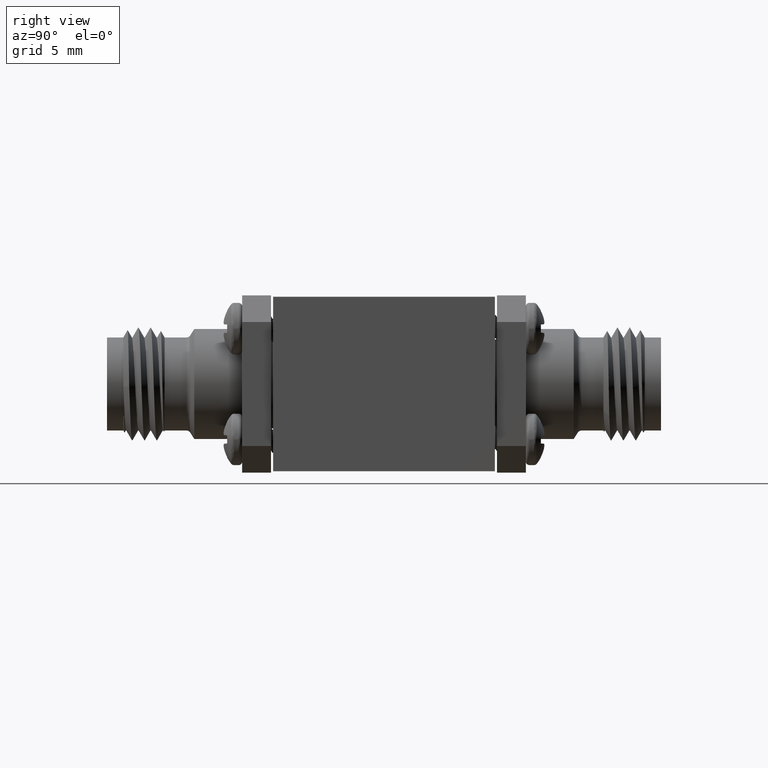
[diagram: clean part render]
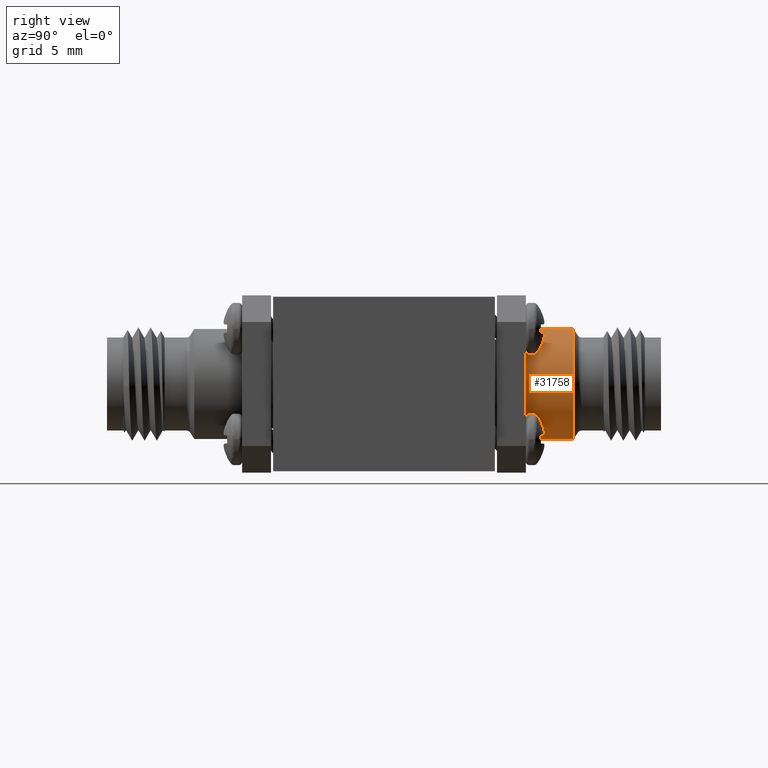
[diagram: same view with one face highlighted and labeled with its STEP entity id]
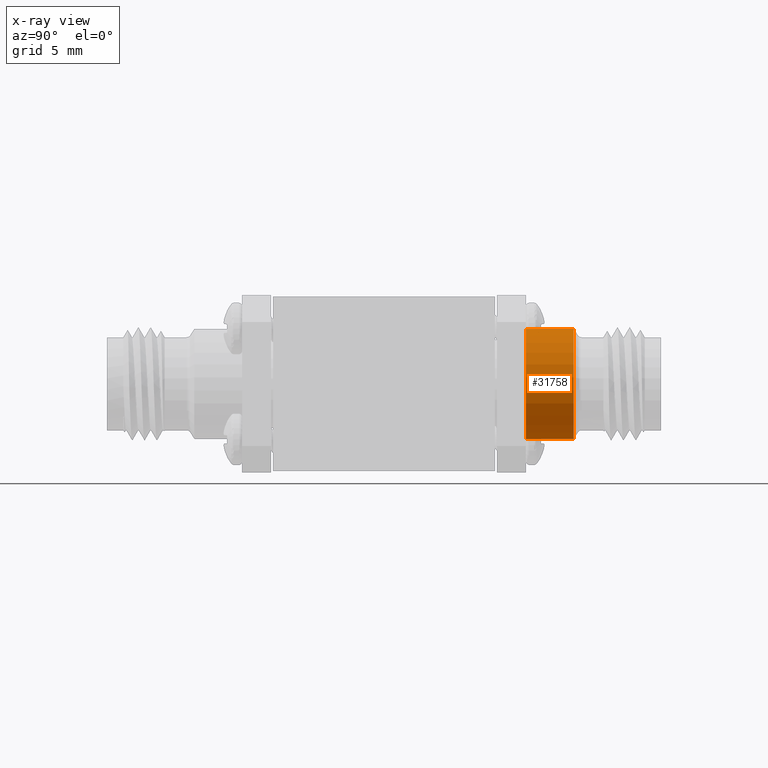
[diagram: x-ray of the same camera — body ghosted, the highlighted face saturated]
A machine part, right view. The second image highlights one B-rep face of the part: STEP entity #31758.
The next image is the same camera in x-ray: the body ghosted, the highlighted face saturated — about 0% of this face is hidden behind the body in this view.
In plain terms, the highlighted cylindrical surface (partial cylindrical patch) has radius 3.1496 mm, axis along (-0, -1, -0).
Its self-contained STEP definition (entity closure, byte-faithful):
#3680 = DIRECTION ( 'NONE',  ( 0.0000000000000000000, -1.000000000000000000, 0.0000000000000000000 ) ) ;
#3889 = AXIS2_PLACEMENT_3D ( 'NONE', #9792, #23200, #22384 ) ;
#3960 = DIRECTION ( 'NONE',  ( 0.0000000000000000000, 0.0000000000000000000, 1.000000000000000000 ) ) ;
#5222 = CIRCLE ( 'NONE', #3889, 0.1240000000000000000 ) ;
#5530 = ORIENTED_EDGE ( 'NONE', *, *, #66424, .F. ) ;
#6593 = ORIENTED_EDGE ( 'NONE', *, *, #36471, .T. ) ;
#6735 = CARTESIAN_POINT ( 'NONE',  ( 0.2499999999999999700, 0.4280000000000000500, 0.3208503937007875000 ) ) ;
#9440 = CARTESIAN_POINT ( 'NONE',  ( 0.2499999999999999700, 0.4400000000000001100, 0.1968503937007874700 ) ) ;
#9500 = VERTEX_POINT ( 'NONE', #54833 ) ;
#9792 = CARTESIAN_POINT ( 'NONE',  ( 0.2499999999999999700, 0.3200000000000000600, 0.1968503937007874700 ) ) ;
#11805 = VECTOR ( 'NONE', #33990, 39.37007874015748100 ) ;
#15599 = EDGE_CURVE ( 'NONE', #18135, #9500, #5222, .T. ) ;
#17565 = CIRCLE ( 'NONE', #66741, 0.1240000000000000000 ) ;
#18135 = VERTEX_POINT ( 'NONE', #58413 ) ;
#22384 = DIRECTION ( 'NONE',  ( 0.0000000000000000000, 0.0000000000000000000, 1.000000000000000000 ) ) ;
#23200 = DIRECTION ( 'NONE',  ( 0.0000000000000000000, 1.000000000000000000, 0.0000000000000000000 ) ) ;
#23719 = AXIS2_PLACEMENT_3D ( 'NONE', #9440, #27474, #70935 ) ;
#25883 = EDGE_LOOP ( 'NONE', ( #79033, #6593, #65352, #5530 ) ) ;
#26708 = EDGE_CURVE ( 'NONE', #66185, #60629, #17565, .T. ) ;
#27474 = DIRECTION ( 'NONE',  ( -0.0000000000000000000, -1.000000000000000000, -0.0000000000000000000 ) ) ;
#31758 = ADVANCED_FACE ( 'NONE', ( #48489 ), #68087, .T. ) ;
#33740 = CARTESIAN_POINT ( 'NONE',  ( 0.2499999999999999700, 0.4400000000000001100, 0.3208503937007875000 ) ) ;
#33990 = DIRECTION ( 'NONE',  ( -0.0000000000000000000, -1.000000000000000000, -0.0000000000000000000 ) ) ;
#35744 = VECTOR ( 'NONE', #77737, 39.37007874015748100 ) ;
#36471 = EDGE_CURVE ( 'NONE', #60629, #18135, #50946, .T. ) ;
#45808 = CARTESIAN_POINT ( 'NONE',  ( 0.2499999999999999700, 0.4280000000000000500, 0.07285039370078748300 ) ) ;
#48489 = FACE_OUTER_BOUND ( 'NONE', #25883, .T. ) ;
#50946 = LINE ( 'NONE', #33740, #11805 ) ;
#54833 = CARTESIAN_POINT ( 'NONE',  ( 0.2499999999999999700, 0.3200000000000000600, 0.07285039370078748300 ) ) ;
#58413 = CARTESIAN_POINT ( 'NONE',  ( 0.2499999999999999700, 0.3200000000000000600, 0.3208503937007875000 ) ) ;
#59590 = CARTESIAN_POINT ( 'NONE',  ( 0.2499999999999999700, 0.4280000000000000500, 0.1968503937007874700 ) ) ;
#60629 = VERTEX_POINT ( 'NONE', #6735 ) ;
#65206 = CARTESIAN_POINT ( 'NONE',  ( 0.2499999999999999700, 0.4400000000000001100, 0.07285039370078748300 ) ) ;
#65352 = ORIENTED_EDGE ( 'NONE', *, *, #15599, .T. ) ;
#66185 = VERTEX_POINT ( 'NONE', #45808 ) ;
#66424 = EDGE_CURVE ( 'NONE', #66185, #9500, #70951, .T. ) ;
#66741 = AXIS2_PLACEMENT_3D ( 'NONE', #59590, #3680, #3960 ) ;
#68087 = CYLINDRICAL_SURFACE ( 'NONE', #23719, 0.1240000000000000000 ) ;
#70935 = DIRECTION ( 'NONE',  ( 0.0000000000000000000, 0.0000000000000000000, -1.000000000000000000 ) ) ;
#70951 = LINE ( 'NONE', #65206, #35744 ) ;
#77737 = DIRECTION ( 'NONE',  ( -0.0000000000000000000, -1.000000000000000000, -0.0000000000000000000 ) ) ;
#79033 = ORIENTED_EDGE ( 'NONE', *, *, #26708, .T. ) ;